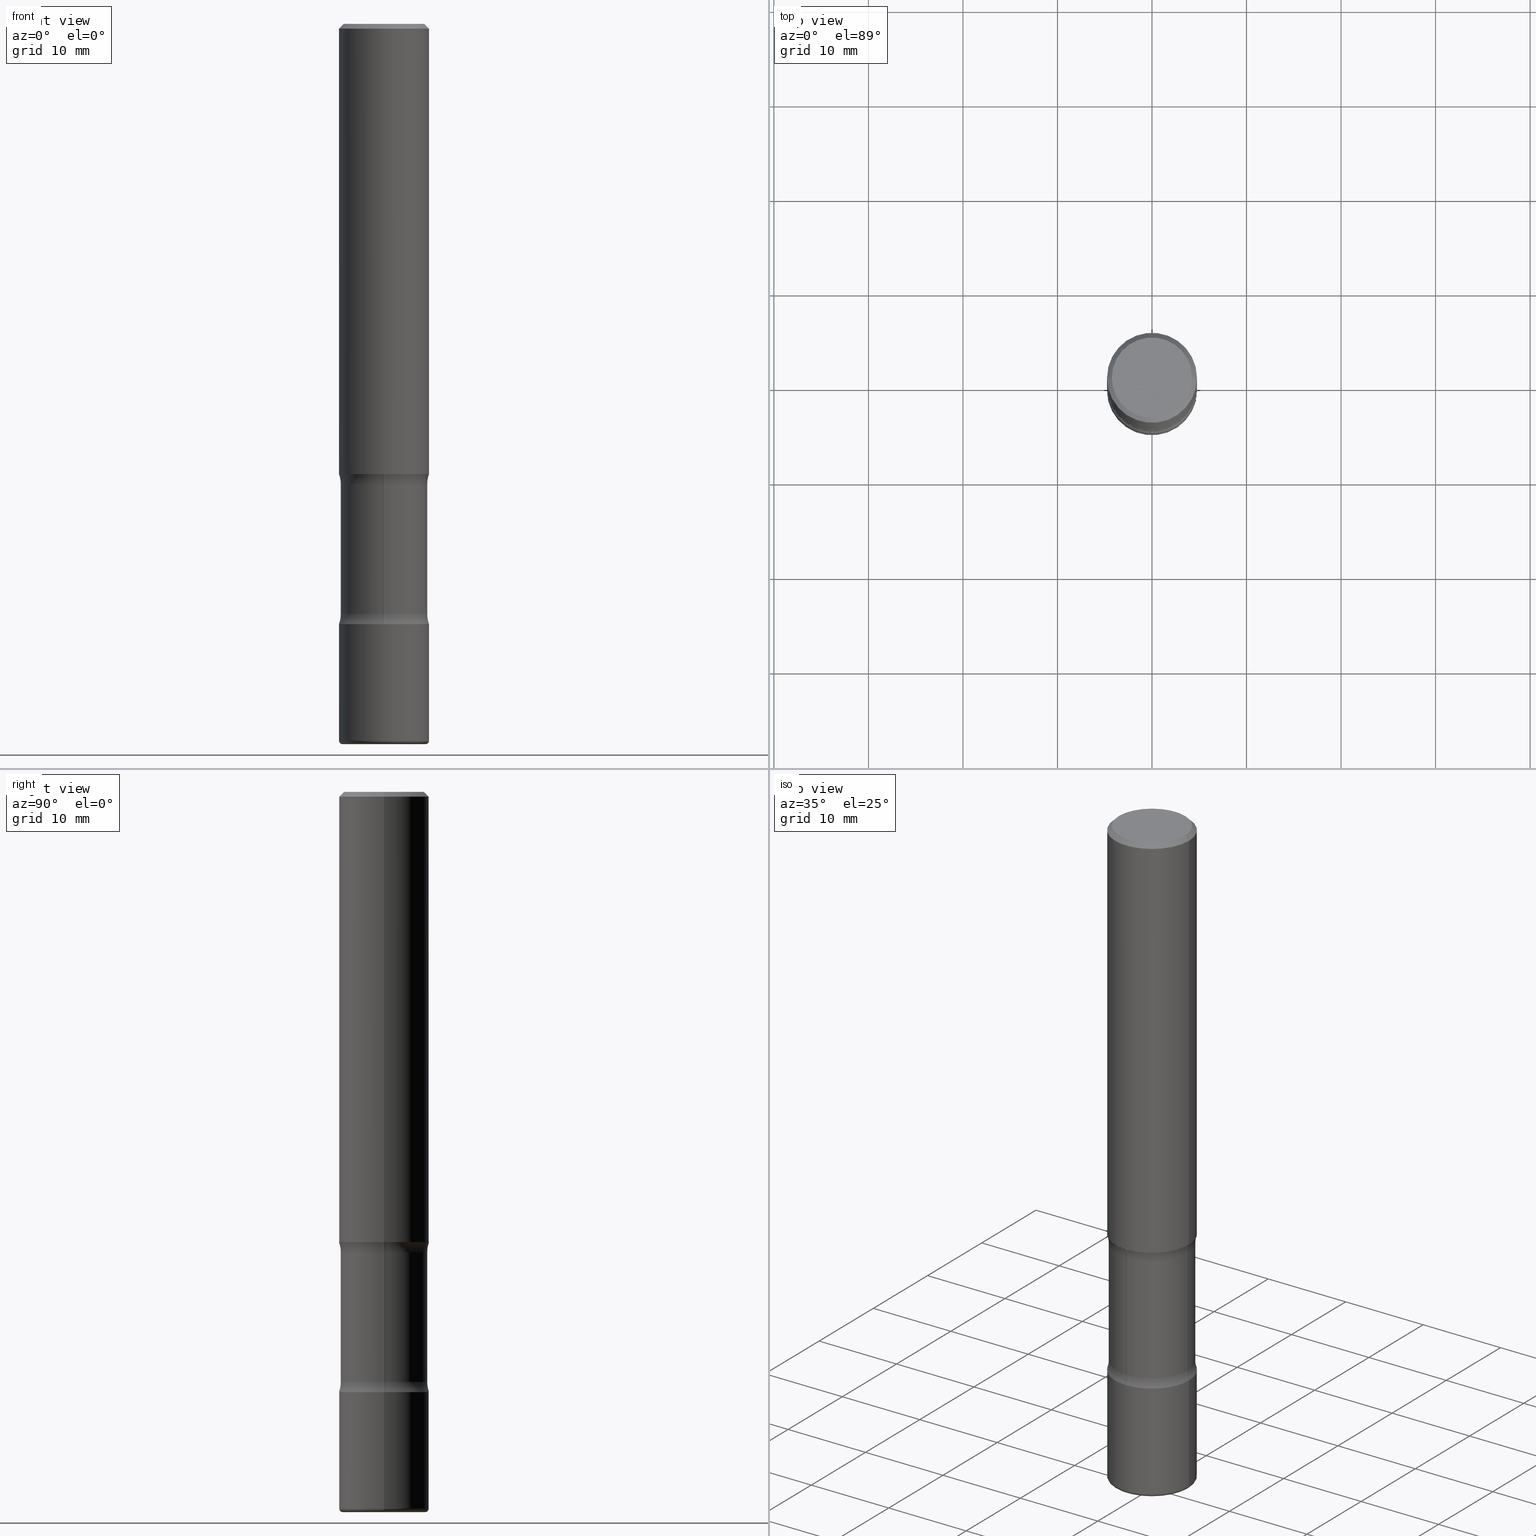
[diagram: canonical four-view strip — front | top / right | iso, engineering-drawing reading convention]
A machine part, canonical four-view strip (front | top / right | iso — engineering-drawing reading convention). The complete STEP part file that produces these views, byte-faithful:
ISO-10303-21;
HEADER;
FILE_DESCRIPTION (( 'STEP AP203' ),
    '1' );
FILE_NAME ('35791.STEP',
    '2023-03-11T07:10:35',
    ( '' ),
    ( '' ),
    'SwSTEP 2.0',
    'SolidWorks 2022',
    '' );
FILE_SCHEMA (( 'CONFIG_CONTROL_DESIGN' ));
ENDSEC;

DATA;
#1 = CYLINDRICAL_SURFACE ( 'NONE', #57, 0.1800000000000000211 ) ;
#2 = AXIS2_PLACEMENT_3D ( 'NONE', #279, #711, #25 ) ;
#3 = ORIENTED_EDGE ( 'NONE', *, *, #94, .T. ) ;
#4 = ADVANCED_FACE ( 'NONE', ( #20 ), #152, .T. ) ;
#5 = DIRECTION ( 'NONE',  ( -1.000000000000000000, 7.105427357601006592E-15, 0.000000000000000000 ) ) ;
#6 = VERTEX_POINT ( 'NONE', #77 ) ;
#7 = DIRECTION ( 'NONE',  ( 1.000000000000000000, -6.982962677686261977E-15, 0.000000000000000000 ) ) ;
#8 = TOROIDAL_SURFACE ( 'NONE', #545, 0.1725000000000000422, 0.01500000000000011394 ) ;
#9 = CARTESIAN_POINT ( 'NONE',  ( 4.636979359799471865E-29, -6.770705658946665508E-15, -1.917646805273080179 ) ) ;
#10 = AXIS2_PLACEMENT_3D ( 'NONE', #354, #736, #227 ) ;
#11 = VERTEX_POINT ( 'NONE', #148 ) ;
#12 = DIRECTION ( 'NONE',  ( -2.445468806185136597E-29, 3.491481338843145583E-15, 1.000000000000000000 ) ) ;
#13 = CARTESIAN_POINT ( 'NONE',  ( 4.641854462123726297E-29, -6.763724234944741292E-15, -1.917646805273080179 ) ) ;
#14 = EDGE_CURVE ( 'NONE', #73, #565, #39, .T. ) ;
#15 = VERTEX_POINT ( 'NONE', #88 ) ;
#16 = UNCERTAINTY_MEASURE_WITH_UNIT (LENGTH_MEASURE( 1.000000000000000082E-05 ), #524, 'distance_accuracy_value', 'NONE');
#17 = DIRECTION ( 'NONE',  ( -1.000000000000000000, 6.982962677686265133E-15, 0.000000000000000000 ) ) ;
#18 = CARTESIAN_POINT ( 'NONE',  ( 0.1874999999999997780, -1.356173001359023691E-15, -0.02000000000000003858 ) ) ;
#19 = CARTESIAN_POINT ( 'NONE',  ( 0.1875000000000000833, -1.173137729851296152E-14, -2.984999999999999876 ) ) ;
#20 = FACE_OUTER_BOUND ( 'NONE', #124, .T. ) ;
#21 = ADVANCED_FACE ( 'NONE', ( #647 ), #308, .F. ) ;
#22 = AXIS2_PLACEMENT_3D ( 'NONE', #771, #460, #710 ) ;
#23 = PRODUCT_RELATED_PRODUCT_CATEGORY ( 'detail', '', ( #224 ) ) ;
#24 = FACE_OUTER_BOUND ( 'NONE', #112, .T. ) ;
#25 = DIRECTION ( 'NONE',  ( 6.982962677686266711E-15, 1.000000000000000000, -2.913971193241879583E-15 ) ) ;
#26 = DATE_AND_TIME ( #341, #583 ) ;
#27 = FACE_OUTER_BOUND ( 'NONE', #542, .T. ) ;
#28 = ORIENTED_EDGE ( 'NONE', *, *, #411, .T. ) ;
#29 = DIRECTION ( 'NONE',  ( -2.445468806185136597E-29, 3.491481338843145583E-15, 1.000000000000000000 ) ) ;
#30 = CARTESIAN_POINT ( 'NONE',  ( 0.1875000000000000555, -1.003800884917403837E-14, -2.499999999999999556 ) ) ;
#31 = APPROVAL_STATUS ( 'not_yet_approved' ) ;
#32 = AXIS2_PLACEMENT_3D ( 'NONE', #325, #123, #759 ) ;
#33 = ORIENTED_EDGE ( 'NONE', *, *, #168, .F. ) ;
#34 = CIRCLE ( 'NONE', #302, 0.1875000000000000278 ) ;
#35 = CARTESIAN_POINT ( 'NONE',  ( 6.113672015462840371E-29, -8.728703347107863365E-15, -2.499999999999999556 ) ) ;
#36 = EDGE_CURVE ( 'NONE', #179, #563, #526, .T. ) ;
#37 = PLANE ( 'NONE',  #803 ) ;
#38 = DIRECTION ( 'NONE',  ( -2.445468806185136597E-29, 3.491481338843145583E-15, 1.000000000000000000 ) ) ;
#39 = CIRCLE ( 'NONE', #604, 0.1800000000000000488 ) ;
#40 = CARTESIAN_POINT ( 'NONE',  ( 0.3049999999999999378, -8.825231651797445339E-15, -1.917646805273080179 ) ) ;
#41 = CARTESIAN_POINT ( 'NONE',  ( 7.336406418555412032E-29, -1.047444401652943951E-14, -3.000000000000000888 ) ) ;
#42 = ORIENTED_EDGE ( 'NONE', *, *, #268, .T. ) ;
#43 = LINE ( 'NONE', #793, #181 ) ;
#44 = DIRECTION ( 'NONE',  ( -1.000000000000000000, 7.105427357601066545E-15, 0.000000000000000000 ) ) ;
#45 = VERTEX_POINT ( 'NONE', #30 ) ;
#46 = AXIS2_PLACEMENT_3D ( 'NONE', #557, #695, #450 ) ;
#47 = CC_DESIGN_DATE_AND_TIME_ASSIGNMENT ( #617, #490, ( #185 ) ) ;
#48 = CIRCLE ( 'NONE', #732, 0.1875000000000000555 ) ;
#49 = LINE ( 'NONE', #162, #436 ) ;
#50 = APPROVAL_DATE_TIME ( #799, #430 ) ;
#51 = ORIENTED_EDGE ( 'NONE', *, *, #605, .T. ) ;
#52 = DIRECTION ( 'NONE',  ( 2.535733759228071603E-29, -3.362216788523591023E-15, -1.000000000000000000 ) ) ;
#53 = ORIENTED_EDGE ( 'NONE', *, *, #168, .T. ) ;
#54 = EDGE_CURVE ( 'NONE', #565, #73, #641, .T. ) ;
#55 = CARTESIAN_POINT ( 'NONE',  ( 0.1800000000000000211, -7.803460792314427030E-15, -1.875000000000000000 ) ) ;
#56 = ORIENTED_EDGE ( 'NONE', *, *, #230, .F. ) ;
#57 = AXIS2_PLACEMENT_3D ( 'NONE', #750, #385, #188 ) ;
#58 = CARTESIAN_POINT ( 'NONE',  ( 2.129803616694357811E-15, 0.3049999999999932765, -1.917646805273081290 ) ) ;
#59 = ORIENTED_EDGE ( 'NONE', *, *, #270, .F. ) ;
#60 = DIRECTION ( 'NONE',  ( 2.445468806185136597E-29, -3.491481338843145583E-15, -1.000000000000000000 ) ) ;
#61 = EDGE_LOOP ( 'NONE', ( #739, #129, #431, #349 ) ) ;
#62 = DIRECTION ( 'NONE',  ( 6.982962677686266711E-15, 1.000000000000000000, -3.362216788523591023E-15 ) ) ;
#63 = VERTEX_POINT ( 'NONE', #215 ) ;
#64 = ADVANCED_FACE ( 'NONE', ( #780 ), #589, .T. ) ;
#65 = CIRCLE ( 'NONE', #580, 0.1874999999999997780 ) ;
#66 = CIRCLE ( 'NONE', #382, 0.1800000000000000488 ) ;
#67 = CARTESIAN_POINT ( 'NONE',  ( 1.256933281983602082E-15, 0.1799999999999896683, -2.994630931690645426 ) ) ;
#68 = EDGE_CURVE ( 'NONE', #15, #352, #709, .T. ) ;
#69 = AXIS2_PLACEMENT_3D ( 'NONE', #105, #419, #796 ) ;
#70 = ORIENTED_EDGE ( 'NONE', *, *, #133, .T. ) ;
#71 = APPLICATION_CONTEXT ( 'configuration controlled 3d designs of mechanical parts and assemblies' ) ;
#72 = DIRECTION ( 'NONE',  ( 2.438088387897960049E-29, -3.491481338843145188E-15, -1.000000000000000000 ) ) ;
#73 = VERTEX_POINT ( 'NONE', #413 ) ;
#74 = DESIGN_CONTEXT ( 'detailed design', #71, 'design' ) ;
#75 = EDGE_CURVE ( 'NONE', #45, #744, #104, .T. ) ;
#76 = FACE_OUTER_BOUND ( 'NONE', #423, .T. ) ;
#77 = CARTESIAN_POINT ( 'NONE',  ( 0.1874999999999997780, -1.356173001359023691E-15, -0.02000000000000003858 ) ) ;
#78 = ORIENTED_EDGE ( 'NONE', *, *, #75, .F. ) ;
#79 = CARTESIAN_POINT ( 'NONE',  ( 6.113672015462840371E-29, -8.728703347107863365E-15, -2.499999999999999556 ) ) ;
#80 = CONICAL_SURFACE ( 'NONE', #236, 0.1874999999999997780, 0.7853981633974487231 ) ;
#81 = CIRCLE ( 'NONE', #479, 0.1875000000000000555 ) ;
#82 = LINE ( 'NONE', #340, #173 ) ;
#83 = AXIS2_PLACEMENT_3D ( 'NONE', #766, #467, #525 ) ;
#84 = CC_DESIGN_SECURITY_CLASSIFICATION ( #384, ( #519 ) ) ;
#85 = ORIENTED_EDGE ( 'NONE', *, *, #510, .F. ) ;
#86 = DIRECTION ( 'NONE',  ( 1.000000000000000000, -6.982962677686267499E-15, 0.000000000000000000 ) ) ;
#87 = FACE_OUTER_BOUND ( 'NONE', #332, .T. ) ;
#88 = CARTESIAN_POINT ( 'NONE',  ( -1.286343374582117400E-15, -0.1875000000000067168, -1.874999999999999556 ) ) ;
#89 = CLOSED_SHELL ( 'NONE', ( #21, #323, #343, #303, #170, #473, #602, #486 ) ) ;
#90 = CARTESIAN_POINT ( 'NONE',  ( 7.367924367309242767E-29, -1.039175976976121566E-14, -2.994630931690644982 ) ) ;
#91 = CARTESIAN_POINT ( 'NONE',  ( 4.689545443575900529E-29, -6.695428035103134465E-15, -1.917646805273080179 ) ) ;
#92 = PRODUCT_DEFINITION_SHAPE ( 'NONE', 'NONE',  #185 ) ;
#93 = PERSON_AND_ORGANIZATION_ROLE ( 'design_owner' ) ;
#94 = EDGE_CURVE ( 'NONE', #176, #375, #211, .T. ) ;
#95 = DIRECTION ( 'NONE',  ( -1.000000000000000000, 6.982962677686265922E-15, -4.876176775795935793E-29 ) ) ;
#96 = DIRECTION ( 'NONE',  ( 1.000000000000000000, -6.982962677686265922E-15, 0.000000000000000000 ) ) ;
#97 = CIRCLE ( 'NONE', #406, 0.1674999999999997047 ) ;
#98 = ORIENTED_EDGE ( 'NONE', *, *, #628, .T. ) ;
#99 = AXIS2_PLACEMENT_3D ( 'NONE', #432, #38, #7 ) ;
#100 = PLANE ( 'NONE',  #356 ) ;
#101 = CARTESIAN_POINT ( 'NONE',  ( -0.3049999999999999378, -4.528272691034830129E-15, -1.917646805273080179 ) ) ;
#102 = COORDINATED_UNIVERSAL_TIME_OFFSET ( 5, 0, .BEHIND. ) ;
#103 = ORIENTED_EDGE ( 'NONE', *, *, #199, .F. ) ;
#104 = CIRCLE ( 'NONE', #629, 0.1875000000000000555 ) ;
#105 = CARTESIAN_POINT ( 'NONE',  ( 4.890937612370282792E-31, -6.982962677686303935E-17, -0.02000000000000003858 ) ) ;
#106 = CARTESIAN_POINT ( 'NONE',  ( -0.1799999999999999933, -5.315355495757832321E-15, -1.917646805273080179 ) ) ;
#107 = ADVANCED_FACE ( 'NONE', ( #274 ), #669, .F. ) ;
#108 = ORIENTED_EDGE ( 'NONE', *, *, #199, .T. ) ;
#109 = CARTESIAN_POINT ( 'NONE',  ( 4.689545443575900529E-29, -6.695428035103134465E-15, -1.917646805273080179 ) ) ;
#110 = DIRECTION ( 'NONE',  ( 6.982962677686266711E-15, 1.000000000000000000, -2.913971193241879583E-15 ) ) ;
#111 = COORDINATED_UNIVERSAL_TIME_OFFSET ( 5, 0, .BEHIND. ) ;
#112 = EDGE_LOOP ( 'NONE', ( #477, #312 ) ) ;
#113 = AXIS2_PLACEMENT_3D ( 'NONE', #178, #801, #787 ) ;
#114 = CIRCLE ( 'NONE', #746, 0.1875000000000000555 ) ;
#115 = DIRECTION ( 'NONE',  ( -2.438088387897960049E-29, 3.491481338843145188E-15, 1.000000000000000000 ) ) ;
#116 = APPROVAL_ROLE ( '' ) ;
#117 = ORIENTED_EDGE ( 'NONE', *, *, #686, .T. ) ;
#118 = APPLICATION_CONTEXT ( 'configuration controlled 3d designs of mechanical parts and assemblies' ) ;
#119 = DIRECTION ( 'NONE',  ( -6.982962677686265133E-15, -1.000000000000000000, 0.000000000000000000 ) ) ;
#120 = EDGE_LOOP ( 'NONE', ( #753, #85 ) ) ;
#121 = DIRECTION ( 'NONE',  ( 6.982962677686265922E-15, 1.000000000000000000, -2.913971193241879977E-15 ) ) ;
#122 = EDGE_CURVE ( 'NONE', #288, #63, #82, .T. ) ;
#123 = DIRECTION ( 'NONE',  ( 2.535733759228071603E-29, -3.362216788523591023E-15, -1.000000000000000000 ) ) ;
#124 = EDGE_LOOP ( 'NONE', ( #645, #184, #342, #444 ) ) ;
#125 = AXIS2_PLACEMENT_3D ( 'NONE', #798, #616, #119 ) ;
#126 = CARTESIAN_POINT ( 'NONE',  ( 4.689545443575900529E-29, -6.695428035103134465E-15, -1.917646805273080179 ) ) ;
#127 = AXIS2_PLACEMENT_3D ( 'NONE', #462, #225, #273 ) ;
#128 = DIRECTION ( 'NONE',  ( -1.000000000000000000, 6.982962677686265133E-15, 0.000000000000000000 ) ) ;
#129 = ORIENTED_EDGE ( 'NONE', *, *, #122, .T. ) ;
#130 = FACE_OUTER_BOUND ( 'NONE', #404, .T. ) ;
#131 = ADVANCED_FACE ( 'NONE', ( #527 ), #80, .T. ) ;
#132 = ORIENTED_EDGE ( 'NONE', *, *, #411, .F. ) ;
#133 = EDGE_CURVE ( 'NONE', #756, #6, #653, .T. ) ;
#134 = DIRECTION ( 'NONE',  ( 2.535733759228071603E-29, -3.362216788523591023E-15, -1.000000000000000000 ) ) ;
#135 = CARTESIAN_POINT ( 'NONE',  ( 4.641854462123726297E-29, -6.763724234944741292E-15, -1.917646805273080179 ) ) ;
#136 = ORIENTED_EDGE ( 'NONE', *, *, #219, .F. ) ;
#137 = CIRCLE ( 'NONE', #180, 0.1875000000000000833 ) ;
#138 = AXIS2_PLACEMENT_3D ( 'NONE', #721, #576, #591 ) ;
#139 = CARTESIAN_POINT ( 'NONE',  ( 1.256933281983588474E-15, 0.1799999999999915001, -2.457353194726920265 ) ) ;
#140 =( GEOMETRIC_REPRESENTATION_CONTEXT ( 3 ) GLOBAL_UNCERTAINTY_ASSIGNED_CONTEXT ( ( #16 ) ) GLOBAL_UNIT_ASSIGNED_CONTEXT ( ( #524, #518, #719 ) ) REPRESENTATION_CONTEXT ( 'NONE', 'WORKASPACE' ) );
#141 = ORIENTED_EDGE ( 'NONE', *, *, #494, .T. ) ;
#142 = CARTESIAN_POINT ( 'NONE',  ( 6.005531071608665946E-29, -8.585315542441815254E-15, -2.457353194726919376 ) ) ;
#143 = MANIFOLD_SOLID_BREP ( 'Body-Move/Copy2[3]', #588 ) ;
#144 = DIRECTION ( 'NONE',  ( 1.000000000000000000, -6.982962677686269077E-15, 0.000000000000000000 ) ) ;
#145 = APPROVAL_ROLE ( '' ) ;
#146 = MANIFOLD_SOLID_BREP ( 'Body-Move/Copy2[4]', #321 ) ;
#147 = DIRECTION ( 'NONE',  ( -2.445468806185136597E-29, 3.491481338843145583E-15, 1.000000000000000000 ) ) ;
#148 = CARTESIAN_POINT ( 'NONE',  ( -1.286343374582101031E-15, -0.1875000000000087985, -2.499999999999999112 ) ) ;
#149 = FACE_OUTER_BOUND ( 'NONE', #377, .T. ) ;
#150 = EDGE_CURVE ( 'NONE', #73, #179, #220, .T. ) ;
#151 = AXIS2_PLACEMENT_3D ( 'NONE', #564, #389, #5 ) ;
#152 = CYLINDRICAL_SURFACE ( 'NONE', #538, 0.1874999999999999167 ) ;
#153 = AXIS2_PLACEMENT_3D ( 'NONE', #126, #12, #200 ) ;
#154 = MANIFOLD_SOLID_BREP ( 'Body-Move/Copy2[2]', #575 ) ;
#155 = ORIENTED_EDGE ( 'NONE', *, *, #54, .T. ) ;
#156 = MANIFOLD_SOLID_BREP ( 'Body-Move/Copy2[1]', #89 ) ;
#157 = DIRECTION ( 'NONE',  ( 2.445468806185136597E-29, -3.491481338843145583E-15, -1.000000000000000000 ) ) ;
#158 = DIRECTION ( 'NONE',  ( 2.445468806185136597E-29, -3.491481338843145583E-15, -1.000000000000000000 ) ) ;
#159 = FACE_OUTER_BOUND ( 'NONE', #694, .T. ) ;
#160 = CARTESIAN_POINT ( 'NONE',  ( 6.009380583484072082E-29, -8.579802822335625240E-15, -2.457353194726919376 ) ) ;
#161 = EDGE_LOOP ( 'NONE', ( #496, #296 ) ) ;
#162 = CARTESIAN_POINT ( 'NONE',  ( -0.1874999999999999167, 1.332267629550187257E-15, -9.223003294227943787E-30 ) ) ;
#163 = DIRECTION ( 'NONE',  ( 6.860497997771529985E-15, 1.000000000000000000, 0.000000000000000000 ) ) ;
#164 = PERSON_AND_ORGANIZATION ( #381, #625 ) ;
#165 = AXIS2_PLACEMENT_3D ( 'NONE', #688, #60, #128 ) ;
#166 = ORIENTED_EDGE ( 'NONE', *, *, #290, .T. ) ;
#167 = AXIS2_PLACEMENT_3D ( 'NONE', #703, #724, #582 ) ;
#168 = EDGE_CURVE ( 'NONE', #6, #472, #65, .T. ) ;
#169 = LINE ( 'NONE', #488, #571 ) ;
#170 = ADVANCED_FACE ( 'NONE', ( #367 ), #8, .T. ) ;
#171 = DIRECTION ( 'NONE',  ( -2.445468806185136597E-29, 3.491481338843145583E-15, 1.000000000000000000 ) ) ;
#172 = VERTEX_POINT ( 'NONE', #794 ) ;
#173 = VECTOR ( 'NONE', #585, 39.37007874015748143 ) ;
#174 = FACE_OUTER_BOUND ( 'NONE', #324, .T. ) ;
#175 = PERSON_AND_ORGANIZATION ( #381, #625 ) ;
#176 = VERTEX_POINT ( 'NONE', #298 ) ;
#177 = DIRECTION ( 'NONE',  ( -0.9993908270190957621, 6.856857904024561992E-15, -0.03489949670249974795 ) ) ;
#178 = CARTESIAN_POINT ( 'NONE',  ( 4.585254011597131119E-29, -6.546527510330898707E-15, -1.875000000000000000 ) ) ;
#179 = VERTEX_POINT ( 'NONE', #106 ) ;
#180 = AXIS2_PLACEMENT_3D ( 'NONE', #537, #421, #110 ) ;
#181 = VECTOR ( 'NONE', #177, 39.37007874015748143 ) ;
#182 = AXIS2_PLACEMENT_3D ( 'NONE', #233, #551, #95 ) ;
#183 = DIRECTION ( 'NONE',  ( 1.000000000000000000, -6.982962677686267499E-15, 4.883557194083113462E-29 ) ) ;
#184 = ORIENTED_EDGE ( 'NONE', *, *, #510, .T. ) ;
#185 = PRODUCT_DEFINITION ( 'UNKNOWN', '', #519, #74 ) ;
#186 = DIRECTION ( 'NONE',  ( 2.535733759228071603E-29, -3.362216788523591023E-15, -1.000000000000000000 ) ) ;
#187 = AXIS2_PLACEMENT_3D ( 'NONE', #91, #461, #144 ) ;
#188 = DIRECTION ( 'NONE',  ( 1.000000000000000000, -6.982962677686267499E-15, 0.000000000000000000 ) ) ;
#189 = ORIENTED_EDGE ( 'NONE', *, *, #440, .T. ) ;
#190 = LINE ( 'NONE', #67, #595 ) ;
#191 = EDGE_LOOP ( 'NONE', ( #249, #504, #469, #674 ) ) ;
#192 = AXIS2_PLACEMENT_3D ( 'NONE', #101, #608, #599 ) ;
#193 = AXIS2_PLACEMENT_3D ( 'NONE', #142, #528, #456 ) ;
#194 = CARTESIAN_POINT ( 'NONE',  ( 0.000000000000000000, 0.000000000000000000, 0.000000000000000000 ) ) ;
#195 = EDGE_CURVE ( 'NONE', #314, #482, #530, .T. ) ;
#196 = EDGE_LOOP ( 'NONE', ( #246, #70, #53, #256 ) ) ;
#197 = CARTESIAN_POINT ( 'NONE',  ( -2.092451889320256668E-15, -0.3050000000000085976, -2.457353194726918488 ) ) ;
#198 = EDGE_LOOP ( 'NONE', ( #508, #768, #624, #659 ) ) ;
#199 = EDGE_CURVE ( 'NONE', #795, #789, #717, .T. ) ;
#200 = DIRECTION ( 'NONE',  ( 1.000000000000000000, -6.982962677686266711E-15, 4.883557194083112340E-29 ) ) ;
#201 = CARTESIAN_POINT ( 'NONE',  ( 1.309305502066220959E-15, 0.1874999999999935052, -1.875000000000000666 ) ) ;
#202 = ORIENTED_EDGE ( 'NONE', *, *, #68, .T. ) ;
#203 = EDGE_CURVE ( 'NONE', #666, #179, #687, .T. ) ;
#204 = CONICAL_SURFACE ( 'NONE', #165, 0.1874999999999997780, 0.7853981633974487231 ) ;
#205 = AXIS2_PLACEMENT_3D ( 'NONE', #775, #652, #206 ) ;
#206 = DIRECTION ( 'NONE',  ( 1.000000000000000000, -6.982962677686215435E-15, 0.000000000000000000 ) ) ;
#207 = CC_DESIGN_APPROVAL ( #430, ( #384 ) ) ;
#208 = DIRECTION ( 'NONE',  ( -2.445468806185136877E-29, 3.491481338843145188E-15, 1.000000000000000000 ) ) ;
#209 = EDGE_CURVE ( 'NONE', #574, #789, #731, .T. ) ;
#210 = CARTESIAN_POINT ( 'NONE',  ( 1.026633993897607079E-29, -1.601363133021255424E-14, -2.499999999999999556 ) ) ;
#211 = LINE ( 'NONE', #357, #212 ) ;
#212 = VECTOR ( 'NONE', #579, 39.37007874015748143 ) ;
#213 = ORIENTED_EDGE ( 'NONE', *, *, #219, .T. ) ;
#214 = DIRECTION ( 'NONE',  ( -1.000000000000000000, 6.982962677686265922E-15, -4.876176775795935793E-29 ) ) ;
#215 = CARTESIAN_POINT ( 'NONE',  ( -1.260616507090458719E-15, -0.1800000000000086253, -2.457353194726918932 ) ) ;
#216 = CARTESIAN_POINT ( 'NONE',  ( 4.585254011597131119E-29, -6.546527510330898707E-15, -1.875000000000000000 ) ) ;
#217 = CARTESIAN_POINT ( 'NONE',  ( 0.1800000000000000488, -9.836736104319153563E-15, -2.457353194726919376 ) ) ;
#218 = TOROIDAL_SURFACE ( 'NONE', #46, 0.1725000000000000422, 0.01500000000000011394 ) ;
#219 = EDGE_CURVE ( 'NONE', #563, #179, #778, .T. ) ;
#220 = LINE ( 'NONE', #764, #745 ) ;
#221 = AXIS2_PLACEMENT_3D ( 'NONE', #216, #405, #86 ) ;
#222 = LOCAL_TIME ( 2, 10, 35.00000000000000000, #102 ) ;
#223 = ORIENTED_EDGE ( 'NONE', *, *, #195, .T. ) ;
#224 = PRODUCT ( '35791', '35791', '', ( #593 ) ) ;
#225 = DIRECTION ( 'NONE',  ( -2.535733759228071042E-29, 3.362216788523591023E-15, 1.000000000000000000 ) ) ;
#226 = ORIENTED_EDGE ( 'NONE', *, *, #484, .T. ) ;
#227 = DIRECTION ( 'NONE',  ( 1.000000000000000000, -6.982962677686265922E-15, 4.876176775795935793E-29 ) ) ;
#228 = CARTESIAN_POINT ( 'NONE',  ( 4.689545443575900529E-29, -6.695428035103134465E-15, -1.917646805273080179 ) ) ;
#229 = PERSON_AND_ORGANIZATION_ROLE ( 'creator' ) ;
#230 = EDGE_CURVE ( 'NONE', #758, #756, #369, .T. ) ;
#231 = ORIENTED_EDGE ( 'NONE', *, *, #568, .F. ) ;
#232 = CC_DESIGN_PERSON_AND_ORGANIZATION_ASSIGNMENT ( #788, #299, ( #519 ) ) ;
#233 = CARTESIAN_POINT ( 'NONE',  ( 1.169646248512447623E-15, 0.1674999999999997047, -5.826888680111756689E-16 ) ) ;
#234 = ADVANCED_FACE ( 'NONE', ( #428 ), #741, .T. ) ;
#235 = FACE_OUTER_BOUND ( 'NONE', #282, .T. ) ;
#236 = AXIS2_PLACEMENT_3D ( 'NONE', #656, #715, #409 ) ;
#237 = ORIENTED_EDGE ( 'NONE', *, *, #209, .F. ) ;
#238 = AXIS2_PLACEMENT_3D ( 'NONE', #412, #533, #512 ) ;
#239 = LOCAL_TIME ( 2, 10, 35.00000000000000000, #748 ) ;
#240 = DIRECTION ( 'NONE',  ( -6.982962677686266711E-15, -1.000000000000000000, 3.491481338843145583E-15 ) ) ;
#241 = CARTESIAN_POINT ( 'NONE',  ( -1.043851414335219820E-46, 1.490343170380447200E-32, 4.268512490100411279E-18 ) ) ;
#242 = EDGE_CURVE ( 'NONE', #11, #314, #337, .T. ) ;
#243 = ORIENTED_EDGE ( 'NONE', *, *, #320, .T. ) ;
#244 = FACE_OUTER_BOUND ( 'NONE', #120, .T. ) ;
#245 = CARTESIAN_POINT ( 'NONE',  ( 7.299724386462632472E-29, -1.042207179644678967E-14, -2.984999999999999876 ) ) ;
#246 = ORIENTED_EDGE ( 'NONE', *, *, #458, .F. ) ;
#247 = CARTESIAN_POINT ( 'NONE',  ( 6.838086267733839931E-28, 7.694469178072711128E-14, -3.000000000000000888 ) ) ;
#248 = CC_DESIGN_DATE_AND_TIME_ASSIGNMENT ( #306, #673, ( #384 ) ) ;
#249 = ORIENTED_EDGE ( 'NONE', *, *, #290, .F. ) ;
#250 = AXIS2_PLACEMENT_3D ( 'NONE', #197, #443, #255 ) ;
#251 = TOROIDAL_SURFACE ( 'NONE', #338, 0.3049999999999999378, 0.1249999999999999584 ) ;
#252 = FACE_OUTER_BOUND ( 'NONE', #487, .T. ) ;
#253 = ORIENTED_EDGE ( 'NONE', *, *, #640, .T. ) ;
#254 = AXIS2_PLACEMENT_3D ( 'NONE', #463, #346, #529 ) ;
#255 = DIRECTION ( 'NONE',  ( 6.860497997771529985E-15, 1.000000000000000000, 0.000000000000000000 ) ) ;
#256 = ORIENTED_EDGE ( 'NONE', *, *, #541, .F. ) ;
#257 = DIRECTION ( 'NONE',  ( 1.000000000000000000, -6.982962677686266711E-15, 4.875936752492901611E-29 ) ) ;
#258 = ORIENTED_EDGE ( 'NONE', *, *, #408, .F. ) ;
#259 = CIRCLE ( 'NONE', #446, 0.1249999999999999584 ) ;
#260 = AXIS2_PLACEMENT_3D ( 'NONE', #403, #464, #347 ) ;
#261 = FACE_OUTER_BOUND ( 'NONE', #365, .T. ) ;
#262 = ORIENTED_EDGE ( 'NONE', *, *, #268, .F. ) ;
#263 = ADVANCED_FACE ( 'NONE', ( #174 ), #37, .F. ) ;
#264 = CARTESIAN_POINT ( 'NONE',  ( 1.309305502066236342E-15, 0.1874999999999913403, -2.500000000000000000 ) ) ;
#265 = ORIENTED_EDGE ( 'NONE', *, *, #605, .F. ) ;
#266 = FACE_OUTER_BOUND ( 'NONE', #198, .T. ) ;
#267 = DIRECTION ( 'NONE',  ( 1.000000000000000000, -6.982962677686265922E-15, 0.000000000000000000 ) ) ;
#268 = EDGE_CURVE ( 'NONE', #288, #15, #634, .T. ) ;
#269 = DIRECTION ( 'NONE',  ( -2.445468806185136597E-29, 3.491481338843145583E-15, 1.000000000000000000 ) ) ;
#270 = EDGE_CURVE ( 'NONE', #352, #15, #137, .T. ) ;
#271 = AXIS2_PLACEMENT_3D ( 'NONE', #241, #552, #425 ) ;
#272 = VECTOR ( 'NONE', #762, 39.37007874015748143 ) ;
#273 = DIRECTION ( 'NONE',  ( -6.982962677686265922E-15, -1.000000000000000000, 3.362216788523591023E-15 ) ) ;
#274 = FACE_OUTER_BOUND ( 'NONE', #635, .T. ) ;
#275 = EDGE_CURVE ( 'NONE', #789, #390, #310, .T. ) ;
#276 = ORIENTED_EDGE ( 'NONE', *, *, #543, .F. ) ;
#277 = DIRECTION ( 'NONE',  ( 2.535733759228071603E-29, -3.362216788523591023E-15, -1.000000000000000000 ) ) ;
#278 = CARTESIAN_POINT ( 'NONE',  ( 1.036015759855943540E-27, -1.479155932447654588E-13, -42.36470967184812508 ) ) ;
#279 = CARTESIAN_POINT ( 'NONE',  ( 4.528838415945296880E-29, -6.627317854280619764E-15, -1.875000000000000000 ) ) ;
#280 = EDGE_CURVE ( 'NONE', #606, #375, #791, .T. ) ;
#281 = DIRECTION ( 'NONE',  ( 1.000000000000000000, -6.982962677686265133E-15, 0.000000000000000000 ) ) ;
#282 = EDGE_LOOP ( 'NONE', ( #439, #231 ) ) ;
#283 = ORIENTED_EDGE ( 'NONE', *, *, #275, .T. ) ;
#284 = DIRECTION ( 'NONE',  ( 6.982962677686266711E-15, 1.000000000000000000, -3.035386659626958343E-15 ) ) ;
#285 = AXIS2_PLACEMENT_3D ( 'NONE', #305, #171, #603 ) ;
#286 = AXIS2_PLACEMENT_3D ( 'NONE', #339, #584, #544 ) ;
#287 = ORIENTED_EDGE ( 'NONE', *, *, #122, .F. ) ;
#288 = VERTEX_POINT ( 'NONE', #540 ) ;
#289 = CARTESIAN_POINT ( 'NONE',  ( 0.1875000000000000555, -7.855833012397073715E-15, -1.875000000000000000 ) ) ;
#290 = EDGE_CURVE ( 'NONE', #666, #631, #763, .T. ) ;
#291 = DIRECTION ( 'NONE',  ( 2.535733759228071042E-29, -3.362216788523591023E-15, -1.000000000000000000 ) ) ;
#292 = CC_DESIGN_PERSON_AND_ORGANIZATION_ASSIGNMENT ( #164, #422, ( #384 ) ) ;
#293 = AXIS2_PLACEMENT_3D ( 'NONE', #398, #722, #334 ) ;
#294 = CARTESIAN_POINT ( 'NONE',  ( -0.1875000000000000555, -7.396435717557673939E-15, -2.499999999999999556 ) ) ;
#295 = DIRECTION ( 'NONE',  ( -2.445468806185136597E-29, 3.491481338843145583E-15, 1.000000000000000000 ) ) ;
#296 = ORIENTED_EDGE ( 'NONE', *, *, #242, .T. ) ;
#297 = DIRECTION ( 'NONE',  ( 1.000000000000000000, -6.982962677686265133E-15, 0.000000000000000000 ) ) ;
#298 = CARTESIAN_POINT ( 'NONE',  ( 7.593586749916580843E-29, -1.006859839396232827E-14, -2.994630931690644982 ) ) ;
#299 = PERSON_AND_ORGANIZATION_ROLE ( 'creator' ) ;
#300 = CIRCLE ( 'NONE', #556, 0.1249999999999999584 ) ;
#301 = EDGE_LOOP ( 'NONE', ( #442, #330, #223, #141 ) ) ;
#302 = AXIS2_PLACEMENT_3D ( 'NONE', #781, #483, #536 ) ;
#303 = ADVANCED_FACE ( 'NONE', ( #235, #676 ), #433, .F. ) ;
#304 = DIRECTION ( 'NONE',  ( -2.445468806185136877E-29, 3.491481338843145188E-15, 1.000000000000000000 ) ) ;
#305 = CARTESIAN_POINT ( 'NONE',  ( 7.299724386462632472E-29, -1.042207179644678967E-14, -2.984999999999999876 ) ) ;
#306 = DATE_AND_TIME ( #600, #561 ) ;
#307 = ORIENTED_EDGE ( 'NONE', *, *, #541, .T. ) ;
#308 = CONICAL_SURFACE ( 'NONE', #681, 1127.411546571520148, 1.535889741755011251 ) ;
#309 = EDGE_CURVE ( 'NONE', #565, #563, #805, .T. ) ;
#310 = LINE ( 'NONE', #782, #391 ) ;
#311 = APPROVAL_DATE_TIME ( #26, #559 ) ;
#312 = ORIENTED_EDGE ( 'NONE', *, *, #499, .T. ) ;
#313 = DIRECTION ( 'NONE',  ( -2.445468806185136877E-29, 3.491481338843145188E-15, 1.000000000000000000 ) ) ;
#314 = VERTEX_POINT ( 'NONE', #264 ) ;
#315 = AXIS2_PLACEMENT_3D ( 'NONE', #247, #115, #493 ) ;
#316 = CIRCLE ( 'NONE', #167, 0.1875000000000000278 ) ;
#317 = CARTESIAN_POINT ( 'NONE',  ( -0.1674999999999997047, 1.204561061900878878E-15, 4.268512490092109750E-18 ) ) ;
#318 = DIRECTION ( 'NONE',  ( -1.000000000000000000, 6.982962677686265922E-15, -4.883557194083112901E-29 ) ) ;
#319 = ORIENTED_EDGE ( 'NONE', *, *, #242, .F. ) ;
#320 = EDGE_CURVE ( 'NONE', #288, #784, #66, .T. ) ;
#321 = CLOSED_SHELL ( 'NONE', ( #64, #661, #372, #401, #263, #590, #773, #534 ) ) ;
#322 = CARTESIAN_POINT ( 'NONE',  ( -1.043851414335219820E-46, 1.490343170380447200E-32, 4.268512490100411279E-18 ) ) ;
#323 = ADVANCED_FACE ( 'NONE', ( #252 ), #626, .T. ) ;
#324 = EDGE_LOOP ( 'NONE', ( #59, #806 ) ) ;
#325 = CARTESIAN_POINT ( 'NONE',  ( 6.005531071608665946E-29, -8.585315542441815254E-15, -2.457353194726919376 ) ) ;
#326 = ORIENTED_EDGE ( 'NONE', *, *, #632, .F. ) ;
#327 = TOROIDAL_SURFACE ( 'NONE', #621, 0.3050000000000000488, 0.1249999999999999584 ) ;
#328 = AXIS2_PLACEMENT_3D ( 'NONE', #90, #345, #284 ) ;
#329 = DIRECTION ( 'NONE',  ( 2.535733759228071603E-29, -3.362216788523591023E-15, -1.000000000000000000 ) ) ;
#330 = ORIENTED_EDGE ( 'NONE', *, *, #760, .F. ) ;
#331 = DIRECTION ( 'NONE',  ( -1.000000000000000000, 6.982962677686265922E-15, -4.876176775795935793E-29 ) ) ;
#332 = EDGE_LOOP ( 'NONE', ( #700, #253, #387 ) ) ;
#333 = CARTESIAN_POINT ( 'NONE',  ( 0.1799999999999999933, -7.952361317086663578E-15, -1.917646805273080179 ) ) ;
#334 = DIRECTION ( 'NONE',  ( 1.000000000000000000, -6.982962677686266711E-15, 0.000000000000000000 ) ) ;
#335 = PERSON_AND_ORGANIZATION ( #381, #625 ) ;
#336 = CARTESIAN_POINT ( 'NONE',  ( -0.1875000000000000833, -9.089804166896600242E-15, -2.984999999999999876 ) ) ;
#337 = CIRCLE ( 'NONE', #434, 0.1875000000000000555 ) ;
#338 = AXIS2_PLACEMENT_3D ( 'NONE', #109, #725, #657 ) ;
#339 = CARTESIAN_POINT ( 'NONE',  ( 7.336406418555409790E-29, -1.047444401652943635E-14, -3.000000000000000444 ) ) ;
#340 = CARTESIAN_POINT ( 'NONE',  ( -1.234889639598802207E-15, -0.1800000000000104294, -2.994630931690644093 ) ) ;
#341 = CALENDAR_DATE ( 2023, 11, 3 ) ;
#342 = ORIENTED_EDGE ( 'NONE', *, *, #664, .T. ) ;
#343 = ADVANCED_FACE ( 'NONE', ( #630 ), #218, .T. ) ;
#344 = CARTESIAN_POINT ( 'NONE',  ( 4.636979359799471865E-29, -6.770705658946665508E-15, -1.917646805273080179 ) ) ;
#345 = DIRECTION ( 'NONE',  ( 2.535733759228071603E-29, -3.362216788523591023E-15, -1.000000000000000000 ) ) ;
#346 = DIRECTION ( 'NONE',  ( 2.535733759228071603E-29, -3.362216788523591023E-15, -1.000000000000000000 ) ) ;
#347 = DIRECTION ( 'NONE',  ( 1.000000000000000000, 0.000000000000000000, 0.000000000000000000 ) ) ;
#348 = EDGE_CURVE ( 'NONE', #784, #482, #190, .T. ) ;
#349 = ORIENTED_EDGE ( 'NONE', *, *, #348, .F. ) ;
#350 = PLANE ( 'NONE',  #127 ) ;
#351 = DIRECTION ( 'NONE',  ( 1.000000000000000000, -6.982962677686266711E-15, 0.000000000000000000 ) ) ;
#352 = VERTEX_POINT ( 'NONE', #201 ) ;
#353 = ADVANCED_FACE ( 'NONE', ( #562 ), #1, .T. ) ;
#354 = CARTESIAN_POINT ( 'NONE',  ( 0.000000000000000000, 0.000000000000000000, 0.000000000000000000 ) ) ;
#355 = AXIS2_PLACEMENT_3D ( 'NONE', #13, #441, #62 ) ;
#356 = AXIS2_PLACEMENT_3D ( 'NONE', #733, #359, #601 ) ;
#357 = CARTESIAN_POINT ( 'NONE',  ( 3.870996207580932970E-16, -1.045569801472035141E-14, -2.994630931690644982 ) ) ;
#358 = SECURITY_CLASSIFICATION_LEVEL ( 'unclassified' ) ;
#359 = DIRECTION ( 'NONE',  ( -2.438088387897960049E-29, 3.491481338843145188E-15, 1.000000000000000000 ) ) ;
#360 = EDGE_CURVE ( 'NONE', #744, #45, #81, .T. ) ;
#361 = CARTESIAN_POINT ( 'NONE',  ( -0.1725000000000000422, -9.196385577260614576E-15, -2.984999999999999876 ) ) ;
#362 = ORIENTED_EDGE ( 'NONE', *, *, #484, .F. ) ;
#363 = DIRECTION ( 'NONE',  ( 1.000000000000000000, -6.982962677686261977E-15, 0.000000000000000000 ) ) ;
#364 = APPROVAL_STATUS ( 'not_yet_approved' ) ;
#365 = EDGE_LOOP ( 'NONE', ( #523, #42, #202, #132 ) ) ;
#366 = DIRECTION ( 'NONE',  ( -2.445468806185136877E-29, 3.491481338843145188E-15, 1.000000000000000000 ) ) ;
#367 = FACE_OUTER_BOUND ( 'NONE', #777, .T. ) ;
#368 = APPROVAL_ROLE ( '' ) ;
#369 = CIRCLE ( 'NONE', #271, 0.1674999999999997047 ) ;
#370 = ORIENTED_EDGE ( 'NONE', *, *, #543, .T. ) ;
#371 = CONICAL_SURFACE ( 'NONE', #637, 1127.411546571520148, 1.535889741755011251 ) ;
#372 = ADVANCED_FACE ( 'NONE', ( #261 ), #699, .F. ) ;
#373 = DIRECTION ( 'NONE',  ( 1.000000000000000000, -6.860497997771530774E-15, 4.842381913802063616E-29 ) ) ;
#374 = APPROVAL_STATUS ( 'not_yet_approved' ) ;
#375 = VERTEX_POINT ( 'NONE', #507 ) ;
#376 = CYLINDRICAL_SURFACE ( 'NONE', #138, 0.1875000000000000555 ) ;
#377 = EDGE_LOOP ( 'NONE', ( #418, #560, #226, #735 ) ) ;
#378 = DIRECTION ( 'NONE',  ( 2.535733759228071603E-29, -3.362216788523591023E-15, -1.000000000000000000 ) ) ;
#379 = CC_DESIGN_PERSON_AND_ORGANIZATION_ASSIGNMENT ( #742, #229, ( #185 ) ) ;
#380 = ORIENTED_EDGE ( 'NONE', *, *, #459, .T. ) ;
#381 = PERSON ( 'UNSPECIFIED', 'UNSPECIFIED', 'UNSPECIFIED', ('UNSPECIFIED'), ('UNSPECIFIED'), ('UNSPECIFIED') ) ;
#382 = AXIS2_PLACEMENT_3D ( 'NONE', #9, #329, #567 ) ;
#383 = AXIS2_PLACEMENT_3D ( 'NONE', #667, #427, #478 ) ;
#384 = SECURITY_CLASSIFICATION ( '', '', #358 ) ;
#385 = DIRECTION ( 'NONE',  ( -2.445468806185136597E-29, 3.491481338843145583E-15, 1.000000000000000000 ) ) ;
#386 = ORIENTED_EDGE ( 'NONE', *, *, #743, .T. ) ;
#387 = ORIENTED_EDGE ( 'NONE', *, *, #752, .F. ) ;
#388 = FACE_OUTER_BOUND ( 'NONE', #301, .T. ) ;
#389 = DIRECTION ( 'NONE',  ( 7.105427357601001859E-15, 1.000000000000000000, -3.491481338843145583E-15 ) ) ;
#390 = VERTEX_POINT ( 'NONE', #693 ) ;
#391 = VECTOR ( 'NONE', #554, 39.37007874015748143 ) ;
#392 = CIRCLE ( 'NONE', #193, 0.1800000000000000488 ) ;
#393 = CC_DESIGN_PERSON_AND_ORGANIZATION_ASSIGNMENT ( #335, #93, ( #224 ) ) ;
#394 = PLANE ( 'NONE',  #701 ) ;
#395 = ORIENTED_EDGE ( 'NONE', *, *, #408, .T. ) ;
#396 = LENGTH_MEASURE_WITH_UNIT ( LENGTH_MEASURE( 0.02539999999999999897 ), #765 );
#397 = CARTESIAN_POINT ( 'NONE',  ( 6.009380583484072082E-29, -8.579802822335625240E-15, -2.457353194726919376 ) ) ;
#398 = CARTESIAN_POINT ( 'NONE',  ( 6.009380583484072082E-29, -8.579802822335625240E-15, -2.457353194726919376 ) ) ;
#399 = CYLINDRICAL_SURFACE ( 'NONE', #221, 0.1800000000000000211 ) ;
#400 = CARTESIAN_POINT ( 'NONE',  ( -0.1537500000000003031, -9.400813504835176160E-15, -3.000000000000000888 ) ) ;
#401 = ADVANCED_FACE ( 'NONE', ( #130 ), #327, .F. ) ;
#402 = DIRECTION ( 'NONE',  ( -2.445468806185136597E-29, 3.491481338843145583E-15, 1.000000000000000000 ) ) ;
#403 = CARTESIAN_POINT ( 'NONE',  ( 0.000000000000000000, 0.000000000000000000, 0.000000000000000000 ) ) ;
#404 = EDGE_LOOP ( 'NONE', ( #262, #491, #28, #610 ) ) ;
#405 = DIRECTION ( 'NONE',  ( -2.445468806185136597E-29, 3.491481338843145583E-15, 1.000000000000000000 ) ) ;
#406 = AXIS2_PLACEMENT_3D ( 'NONE', #322, #698, #257 ) ;
#407 = PLANE ( 'NONE',  #804 ) ;
#408 = EDGE_CURVE ( 'NONE', #63, #482, #649, .T. ) ;
#409 = DIRECTION ( 'NONE',  ( -1.000000000000000000, 6.982962677686265133E-15, 0.000000000000000000 ) ) ;
#410 = APPLICATION_PROTOCOL_DEFINITION ( 'international standard', 'config_control_design', 1994, #118 ) ;
#411 = EDGE_CURVE ( 'NONE', #784, #352, #300, .T. ) ;
#412 = CARTESIAN_POINT ( 'NONE',  ( 4.585254011597131119E-29, -6.546527510330898707E-15, -1.875000000000000000 ) ) ;
#413 = CARTESIAN_POINT ( 'NONE',  ( -0.1800000000000000488, -7.348630807762558854E-15, -2.457353194726919376 ) ) ;
#414 = EDGE_LOOP ( 'NONE', ( #706, #117, #33, #500 ) ) ;
#415 = CARTESIAN_POINT ( 'NONE',  ( -0.1725000000000000422, -9.169280982119931541E-15, -3.000000000000000444 ) ) ;
#416 = FACE_OUTER_BOUND ( 'NONE', #191, .T. ) ;
#417 = CARTESIAN_POINT ( 'NONE',  ( 6.113672015462840371E-29, -8.728703347107863365E-15, -2.499999999999999556 ) ) ;
#418 = ORIENTED_EDGE ( 'NONE', *, *, #459, .F. ) ;
#419 = DIRECTION ( 'NONE',  ( -2.445468806185136597E-29, 3.491481338843145583E-15, 1.000000000000000000 ) ) ;
#420 = VECTOR ( 'NONE', #313, 39.37007874015748143 ) ;
#421 = DIRECTION ( 'NONE',  ( 2.535733759228071603E-29, -3.362216788523591023E-15, -1.000000000000000000 ) ) ;
#422 = PERSON_AND_ORGANIZATION_ROLE ( 'classification_officer' ) ;
#423 = EDGE_LOOP ( 'NONE', ( #287, #243, #684, #258 ) ) ;
#424 = CYLINDRICAL_SURFACE ( 'NONE', #10, 0.1874999999999999167 ) ;
#425 = DIRECTION ( 'NONE',  ( 1.000000000000000000, -6.982962677686266711E-15, 4.875936752492901611E-29 ) ) ;
#426 = ORIENTED_EDGE ( 'NONE', *, *, #230, .T. ) ;
#427 = DIRECTION ( 'NONE',  ( 2.535733759228071603E-29, -3.362216788523591023E-15, -1.000000000000000000 ) ) ;
#428 = FACE_OUTER_BOUND ( 'NONE', #468, .T. ) ;
#429 = PERSON_AND_ORGANIZATION ( #381, #625 ) ;
#430 = APPROVAL ( #364, 'UNSPECIFIED' ) ;
#431 = ORIENTED_EDGE ( 'NONE', *, *, #494, .F. ) ;
#432 = CARTESIAN_POINT ( 'NONE',  ( 7.336406418555412032E-29, -1.047444401652943951E-14, -3.000000000000000888 ) ) ;
#433 = PLANE ( 'NONE',  #315 ) ;
#434 = AXIS2_PLACEMENT_3D ( 'NONE', #737, #52, #734 ) ;
#435 = VERTEX_POINT ( 'NONE', #757 ) ;
#436 = VECTOR ( 'NONE', #304, 39.37007874015748143 ) ;
#437 = DIRECTION ( 'NONE',  ( 1.000000000000000000, -6.982962677686265133E-15, 0.000000000000000000 ) ) ;
#438 = SHAPE_DEFINITION_REPRESENTATION ( #92, #707 ) ;
#439 = ORIENTED_EDGE ( 'NONE', *, *, #628, .F. ) ;
#440 = EDGE_CURVE ( 'NONE', #11, #63, #754, .T. ) ;
#441 = DIRECTION ( 'NONE',  ( 2.535733759228071603E-29, -3.362216788523591023E-15, -1.000000000000000000 ) ) ;
#442 = ORIENTED_EDGE ( 'NONE', *, *, #440, .F. ) ;
#443 = DIRECTION ( 'NONE',  ( 1.000000000000000000, -6.860497997771530774E-15, 4.842381913802063616E-29 ) ) ;
#444 = ORIENTED_EDGE ( 'NONE', *, *, #704, .F. ) ;
#445 = AXIS2_PLACEMENT_3D ( 'NONE', #41, #295, #363 ) ;
#446 = AXIS2_PLACEMENT_3D ( 'NONE', #713, #705, #281 ) ;
#447 = ADVANCED_FACE ( 'NONE', ( #501 ), #204, .T. ) ;
#448 = DIRECTION ( 'NONE',  ( -2.445468806185136597E-29, 3.491481338843145583E-15, 1.000000000000000000 ) ) ;
#449 = ORIENTED_EDGE ( 'NONE', *, *, #640, .F. ) ;
#450 = DIRECTION ( 'NONE',  ( 1.000000000000000000, -6.982962677686267499E-15, 4.883557194083113462E-29 ) ) ;
#451 = ORIENTED_EDGE ( 'NONE', *, *, #499, .F. ) ;
#452 = CC_DESIGN_PERSON_AND_ORGANIZATION_ASSIGNMENT ( #175, #738, ( #519 ) ) ;
#453 = DIRECTION ( 'NONE',  ( -6.982962677686265133E-15, -1.000000000000000000, 0.000000000000000000 ) ) ;
#454 = EDGE_LOOP ( 'NONE', ( #449, #3, #639 ) ) ;
#455 = CIRCLE ( 'NONE', #99, 0.1537500000000000533 ) ;
#456 = DIRECTION ( 'NONE',  ( 6.982962677686266711E-15, 1.000000000000000000, -3.035386659626958343E-15 ) ) ;
#457 = DIRECTION ( 'NONE',  ( -2.445468806185136597E-29, 3.491481338843145583E-15, 1.000000000000000000 ) ) ;
#458 = EDGE_CURVE ( 'NONE', #756, #758, #97, .T. ) ;
#459 = EDGE_CURVE ( 'NONE', #73, #744, #505, .T. ) ;
#460 = DIRECTION ( 'NONE',  ( -2.445468806185136597E-29, 3.491481338843145583E-15, 1.000000000000000000 ) ) ;
#461 = DIRECTION ( 'NONE',  ( -2.445468806185136597E-29, 3.491481338843145583E-15, 1.000000000000000000 ) ) ;
#462 = CARTESIAN_POINT ( 'NONE',  ( 1.026633993897607079E-29, -1.601363133021255424E-14, -2.499999999999999556 ) ) ;
#463 = CARTESIAN_POINT ( 'NONE',  ( 7.367924367309242767E-29, -1.039175976976121566E-14, -2.994630931690644982 ) ) ;
#464 = DIRECTION ( 'NONE',  ( 0.000000000000000000, 0.000000000000000000, 1.000000000000000000 ) ) ;
#465 = AXIS2_PLACEMENT_3D ( 'NONE', #728, #373, #163 ) ;
#466 = TOROIDAL_SURFACE ( 'NONE', #383, 0.3050000000000000488, 0.1249999999999999861 ) ;
#467 = DIRECTION ( 'NONE',  ( -2.445468806185136597E-29, 3.491481338843145583E-15, 1.000000000000000000 ) ) ;
#468 = EDGE_LOOP ( 'NONE', ( #682, #166 ) ) ;
#469 = ORIENTED_EDGE ( 'NONE', *, *, #36, .T. ) ;
#470 = DIRECTION ( 'NONE',  ( 6.982962677686266711E-15, 1.000000000000000000, -3.035386659626958343E-15 ) ) ;
#471 = DIRECTION ( 'NONE',  ( 1.000000000000000000, -6.982962677686265133E-15, 4.883557194083112340E-29 ) ) ;
#472 = VERTEX_POINT ( 'NONE', #503 ) ;
#473 = ADVANCED_FACE ( 'NONE', ( #633 ), #376, .T. ) ;
#474 = CARTESIAN_POINT ( 'NONE',  ( 0.1875000000000000555, -1.003800884917403837E-14, -2.499999999999999556 ) ) ;
#475 = DIRECTION ( 'NONE',  ( 7.105427357601001859E-15, 1.000000000000000000, -3.491481338843145583E-15 ) ) ;
#476 = CALENDAR_DATE ( 2023, 11, 3 ) ;
#477 = ORIENTED_EDGE ( 'NONE', *, *, #678, .T. ) ;
#478 = DIRECTION ( 'NONE',  ( 6.982962677686266711E-15, 1.000000000000000000, -3.362216788523591023E-15 ) ) ;
#479 = AXIS2_PLACEMENT_3D ( 'NONE', #573, #448, #619 ) ;
#480 = CIRCLE ( 'NONE', #83, 0.1725000000000000422 ) ;
#481 = DIRECTION ( 'NONE',  ( -2.445468806185136597E-29, 3.491481338843145583E-15, 1.000000000000000000 ) ) ;
#482 = VERTEX_POINT ( 'NONE', #139 ) ;
#483 = DIRECTION ( 'NONE',  ( -2.445468806185136597E-29, 3.491481338843145583E-15, 1.000000000000000000 ) ) ;
#484 = EDGE_CURVE ( 'NONE', #565, #45, #259, .T. ) ;
#485 = DIRECTION ( 'NONE',  ( -2.438088387897960049E-29, 3.491481338843145188E-15, 1.000000000000000000 ) ) ;
#486 = ADVANCED_FACE ( 'NONE', ( #87 ), #371, .F. ) ;
#487 = EDGE_LOOP ( 'NONE', ( #761, #283, #802, #749 ) ) ;
#488 = CARTESIAN_POINT ( 'NONE',  ( 0.1875000000000000555, -1.309305502066175205E-15, 9.142831454617382414E-30 ) ) ;
#489 = CARTESIAN_POINT ( 'NONE',  ( 4.585254011597131119E-29, -6.546527510330898707E-15, -1.875000000000000000 ) ) ;
#490 = DATE_TIME_ROLE ( 'creation_date' ) ;
#491 = ORIENTED_EDGE ( 'NONE', *, *, #790, .F. ) ;
#492 = AXIS2_PLACEMENT_3D ( 'NONE', #361, #475, #44 ) ;
#493 = DIRECTION ( 'NONE',  ( 1.000000000000000000, -6.982962677686265922E-15, 4.876176775795935793E-29 ) ) ;
#494 = EDGE_CURVE ( 'NONE', #482, #63, #392, .T. ) ;
#495 = CIRCLE ( 'NONE', #238, 0.1875000000000000278 ) ;
#496 = ORIENTED_EDGE ( 'NONE', *, *, #760, .T. ) ;
#497 = CARTESIAN_POINT ( 'NONE',  ( 6.009380583484072082E-29, -8.579802822335625240E-15, -2.457353194726919376 ) ) ;
#498 = DIRECTION ( 'NONE',  ( -2.445468806185136597E-29, 3.491481338843145583E-15, 1.000000000000000000 ) ) ;
#499 = EDGE_CURVE ( 'NONE', #390, #670, #546, .T. ) ;
#500 = ORIENTED_EDGE ( 'NONE', *, *, #664, .F. ) ;
#501 = FACE_OUTER_BOUND ( 'NONE', #690, .T. ) ;
#502 = ORIENTED_EDGE ( 'NONE', *, *, #14, .F. ) ;
#503 = CARTESIAN_POINT ( 'NONE',  ( -0.1874999999999997780, 1.239475875289310330E-15, -0.02000000000000003858 ) ) ;
#504 = ORIENTED_EDGE ( 'NONE', *, *, #203, .T. ) ;
#505 = CIRCLE ( 'NONE', #151, 0.1249999999999999584 ) ;
#506 = TOROIDAL_SURFACE ( 'NONE', #153, 0.3049999999999999378, 0.1249999999999999584 ) ;
#507 = CARTESIAN_POINT ( 'NONE',  ( 0.1537500000000003031, -1.152924558368681337E-14, -3.000000000000000888 ) ) ;
#508 = ORIENTED_EDGE ( 'NONE', *, *, #150, .F. ) ;
#509 = DIRECTION ( 'NONE',  ( 1.000000000000000000, -6.982962677686265922E-15, 4.876176775795935793E-29 ) ) ;
#510 = EDGE_CURVE ( 'NONE', #615, #435, #495, .T. ) ;
#511 = ORIENTED_EDGE ( 'NONE', *, *, #360, .F. ) ;
#512 = DIRECTION ( 'NONE',  ( 1.000000000000000000, -6.982962677686266711E-15, 0.000000000000000000 ) ) ;
#513 = DIRECTION ( 'NONE',  ( -2.445468806185136597E-29, 3.491481338843145583E-15, 1.000000000000000000 ) ) ;
#514 = ADVANCED_FACE ( 'NONE', ( #149 ), #689, .F. ) ;
#515 = AXIS2_PLACEMENT_3D ( 'NONE', #228, #547, #679 ) ;
#516 = ADVANCED_FACE ( 'NONE', ( #27 ), #407, .T. ) ;
#517 = CIRCLE ( 'NONE', #22, 0.1875000000000000278 ) ;
#518 =( NAMED_UNIT ( * ) PLANE_ANGLE_UNIT ( ) SI_UNIT ( $, .RADIAN. ) );
#519 = PRODUCT_DEFINITION_FORMATION_WITH_SPECIFIED_SOURCE ( 'ANY', '', #224, .NOT_KNOWN. ) ;
#520 = CARTESIAN_POINT ( 'NONE',  ( 1.026633993897607079E-29, -1.601363133021255424E-14, -2.499999999999999556 ) ) ;
#521 = CARTESIAN_POINT ( 'NONE',  ( 6.009380583484072082E-29, -8.579802822335625240E-15, -2.457353194726919376 ) ) ;
#522 = APPLICATION_PROTOCOL_DEFINITION ( 'international standard', 'config_control_design', 1994, #71 ) ;
#523 = ORIENTED_EDGE ( 'NONE', *, *, #320, .F. ) ;
#524 =( CONVERSION_BASED_UNIT ( 'INCH', #396 ) LENGTH_UNIT ( ) NAMED_UNIT ( #594 ) );
#525 = DIRECTION ( 'NONE',  ( 1.000000000000000000, -6.982962677686272233E-15, 0.000000000000000000 ) ) ;
#526 = CIRCLE ( 'NONE', #187, 0.1799999999999999933 ) ;
#527 = FACE_OUTER_BOUND ( 'NONE', #196, .T. ) ;
#528 = DIRECTION ( 'NONE',  ( 2.535733759228071603E-29, -3.362216788523591023E-15, -1.000000000000000000 ) ) ;
#529 = DIRECTION ( 'NONE',  ( 6.982962677686266711E-15, 1.000000000000000000, -3.035386659626958343E-15 ) ) ;
#530 = CIRCLE ( 'NONE', #125, 0.1250000000000000000 ) ;
#531 = VECTOR ( 'NONE', #776, 39.37007874015748143 ) ;
#532 = AXIS2_PLACEMENT_3D ( 'NONE', #79, #29, #267 ) ;
#533 = DIRECTION ( 'NONE',  ( -2.445468806185136597E-29, 3.491481338843145583E-15, 1.000000000000000000 ) ) ;
#534 = ADVANCED_FACE ( 'NONE', ( #76 ), #587, .T. ) ;
#535 = ORIENTED_EDGE ( 'NONE', *, *, #568, .T. ) ;
#536 = DIRECTION ( 'NONE',  ( 1.000000000000000000, -6.982962677686266711E-15, 0.000000000000000000 ) ) ;
#537 = CARTESIAN_POINT ( 'NONE',  ( 4.528838415945296880E-29, -6.627317854280619764E-15, -1.875000000000000000 ) ) ;
#538 = AXIS2_PLACEMENT_3D ( 'NONE', #592, #457, #726 ) ;
#539 = CARTESIAN_POINT ( 'NONE',  ( 0.1874999999999999167, -1.309305502066174219E-15, 9.142831454617375408E-30 ) ) ;
#540 = CARTESIAN_POINT ( 'NONE',  ( -1.260616507090473510E-15, -0.1800000000000068212, -1.917646805273079513 ) ) ;
#541 = EDGE_CURVE ( 'NONE', #758, #472, #655, .T. ) ;
#542 = EDGE_LOOP ( 'NONE', ( #78, #511 ) ) ;
#543 = EDGE_CURVE ( 'NONE', #172, #574, #623, .T. ) ;
#544 = DIRECTION ( 'NONE',  ( 1.000000000000000000, -6.982962677686272233E-15, 0.000000000000000000 ) ) ;
#545 = AXIS2_PLACEMENT_3D ( 'NONE', #245, #613, #183 ) ;
#546 = CIRCLE ( 'NONE', #532, 0.1875000000000000555 ) ;
#547 = DIRECTION ( 'NONE',  ( -2.445468806185136597E-29, 3.491481338843145583E-15, 1.000000000000000000 ) ) ;
#548 = COORDINATED_UNIVERSAL_TIME_OFFSET ( 5, 0, .BEHIND. ) ;
#549 = LOCAL_TIME ( 2, 10, 35.00000000000000000, #548 ) ;
#550 = ORIENTED_EDGE ( 'NONE', *, *, #309, .F. ) ;
#551 = DIRECTION ( 'NONE',  ( 2.438088387897960049E-29, -3.491481338843145188E-15, -1.000000000000000000 ) ) ;
#552 = DIRECTION ( 'NONE',  ( -2.445468806185136597E-29, 3.491481338843145583E-15, 1.000000000000000000 ) ) ;
#553 = EDGE_LOOP ( 'NONE', ( #98, #108, #237, #276 ) ) ;
#554 = DIRECTION ( 'NONE',  ( -2.445468806185136877E-29, 3.491481338843145188E-15, 1.000000000000000000 ) ) ;
#555 = EDGE_LOOP ( 'NONE', ( #155, #658, #136, #550 ) ) ;
#556 = AXIS2_PLACEMENT_3D ( 'NONE', #58, #318, #453 ) ;
#557 = CARTESIAN_POINT ( 'NONE',  ( 7.299724386462632472E-29, -1.042207179644678967E-14, -2.984999999999999876 ) ) ;
#558 = CIRCLE ( 'NONE', #69, 0.1874999999999997780 ) ;
#559 = APPROVAL ( #31, 'UNSPECIFIED' ) ;
#560 = ORIENTED_EDGE ( 'NONE', *, *, #54, .F. ) ;
#561 = LOCAL_TIME ( 2, 10, 35.00000000000000000, #111 ) ;
#562 = FACE_OUTER_BOUND ( 'NONE', #555, .T. ) ;
#563 = VERTEX_POINT ( 'NONE', #333 ) ;
#564 = CARTESIAN_POINT ( 'NONE',  ( -0.3050000000000000488, -6.412647478267320115E-15, -2.457353194726919376 ) ) ;
#565 = VERTEX_POINT ( 'NONE', #217 ) ;
#566 = APPROVAL ( #374, 'UNSPECIFIED' ) ;
#567 = DIRECTION ( 'NONE',  ( 6.982962677686266711E-15, 1.000000000000000000, -3.035386659626958343E-15 ) ) ;
#568 = EDGE_CURVE ( 'NONE', #795, #172, #480, .T. ) ;
#569 = EDGE_LOOP ( 'NONE', ( #800, #51, #386, #451 ) ) ;
#570 = AXIS2_PLACEMENT_3D ( 'NONE', #194, #498, #509 ) ;
#571 = VECTOR ( 'NONE', #740, 39.37007874015748143 ) ;
#572 = FACE_OUTER_BOUND ( 'NONE', #723, .T. ) ;
#573 = CARTESIAN_POINT ( 'NONE',  ( 6.113672015462840371E-29, -8.728703347107863365E-15, -2.499999999999999556 ) ) ;
#574 = VERTEX_POINT ( 'NONE', #19 ) ;
#575 = CLOSED_SHELL ( 'NONE', ( #654, #131, #447, #638, #714, #4 ) ) ;
#576 = DIRECTION ( 'NONE',  ( -2.445468806185136597E-29, 3.491481338843145583E-15, 1.000000000000000000 ) ) ;
#577 = ORIENTED_EDGE ( 'NONE', *, *, #360, .T. ) ;
#578 = FACE_OUTER_BOUND ( 'NONE', #161, .T. ) ;
#579 = DIRECTION ( 'NONE',  ( 0.9993908270190957621, -6.978169709227537544E-15, -0.03489949670249974795 ) ) ;
#580 = AXIS2_PLACEMENT_3D ( 'NONE', #747, #481, #437 ) ;
#581 = AXIS2_PLACEMENT_3D ( 'NONE', #40, #240, #297 ) ;
#582 = DIRECTION ( 'NONE',  ( 1.000000000000000000, -6.982962677686266711E-15, 0.000000000000000000 ) ) ;
#583 = LOCAL_TIME ( 2, 10, 35.00000000000000000, #712 ) ;
#584 = DIRECTION ( 'NONE',  ( -2.445468806185136597E-29, 3.491481338843145583E-15, 1.000000000000000000 ) ) ;
#585 = DIRECTION ( 'NONE',  ( 2.535733759228071603E-29, -3.362216788523591023E-15, -1.000000000000000000 ) ) ;
#586 = PERSON_AND_ORGANIZATION ( #381, #625 ) ;
#587 = CYLINDRICAL_SURFACE ( 'NONE', #328, 0.1800000000000000488 ) ;
#588 = CLOSED_SHELL ( 'NONE', ( #353, #107, #648, #770, #234, #516, #514, #785 ) ) ;
#589 = CYLINDRICAL_SURFACE ( 'NONE', #254, 0.1800000000000000488 ) ;
#590 = ADVANCED_FACE ( 'NONE', ( #578 ), #350, .F. ) ;
#591 = DIRECTION ( 'NONE',  ( 1.000000000000000000, -6.982962677686265922E-15, 4.876176775795935793E-29 ) ) ;
#592 = CARTESIAN_POINT ( 'NONE',  ( 0.000000000000000000, 0.000000000000000000, 0.000000000000000000 ) ) ;
#593 = MECHANICAL_CONTEXT ( 'NONE', #118, 'mechanical' ) ;
#594 = DIMENSIONAL_EXPONENTS ( 1.000000000000000000, 0.000000000000000000, 0.000000000000000000, 0.000000000000000000, 0.000000000000000000, 0.000000000000000000, 0.000000000000000000 ) ;
#595 = VECTOR ( 'NONE', #755, 39.37007874015748143 ) ;
#596 = CIRCLE ( 'NONE', #581, 0.1249999999999999584 ) ;
#597 = CC_DESIGN_APPROVAL ( #559, ( #185 ) ) ;
#598 = CARTESIAN_POINT ( 'NONE',  ( -0.1875000000000000555, -5.214259880780710070E-15, -1.875000000000000000 ) ) ;
#599 = DIRECTION ( 'NONE',  ( -1.000000000000000000, 7.105427357601001859E-15, 0.000000000000000000 ) ) ;
#600 = CALENDAR_DATE ( 2023, 11, 3 ) ;
#601 = DIRECTION ( 'NONE',  ( 1.000000000000000000, -6.982962677686265922E-15, 4.876176775795935793E-29 ) ) ;
#602 = ADVANCED_FACE ( 'NONE', ( #24 ), #394, .F. ) ;
#603 = DIRECTION ( 'NONE',  ( 1.000000000000000000, -6.982962677686261189E-15, 0.000000000000000000 ) ) ;
#604 = AXIS2_PLACEMENT_3D ( 'NONE', #160, #513, #351 ) ;
#605 = EDGE_CURVE ( 'NONE', #789, #574, #517, .T. ) ;
#606 = VERTEX_POINT ( 'NONE', #400 ) ;
#607 = PLANE ( 'NONE',  #182 ) ;
#608 = DIRECTION ( 'NONE',  ( 7.105427357601001859E-15, 1.000000000000000000, -3.491481338843145583E-15 ) ) ;
#609 = APPROVAL_DATE_TIME ( #680, #566 ) ;
#610 = ORIENTED_EDGE ( 'NONE', *, *, #270, .T. ) ;
#611 = DIRECTION ( 'NONE',  ( 1.000000000000000000, -6.982962677686265922E-15, 0.000000000000000000 ) ) ;
#612 = TOROIDAL_SURFACE ( 'NONE', #662, 0.3050000000000000488, 0.1249999999999999861 ) ;
#613 = DIRECTION ( 'NONE',  ( -2.445468806185136597E-29, 3.491481338843145583E-15, 1.000000000000000000 ) ) ;
#614 = CALENDAR_DATE ( 2023, 11, 3 ) ;
#615 = VERTEX_POINT ( 'NONE', #646 ) ;
#616 = DIRECTION ( 'NONE',  ( -1.000000000000000000, 6.982962677686265922E-15, -4.883557194083112901E-29 ) ) ;
#617 = DATE_AND_TIME ( #729, #239 ) ;
#618 = ORIENTED_EDGE ( 'NONE', *, *, #203, .F. ) ;
#619 = DIRECTION ( 'NONE',  ( 1.000000000000000000, -6.982962677686265922E-15, 0.000000000000000000 ) ) ;
#620 = ORIENTED_EDGE ( 'NONE', *, *, #704, .T. ) ;
#621 = AXIS2_PLACEMENT_3D ( 'NONE', #135, #378, #622 ) ;
#622 = DIRECTION ( 'NONE',  ( 6.982962677686266711E-15, 1.000000000000000000, -3.362216788523591023E-15 ) ) ;
#623 = CIRCLE ( 'NONE', #205, 0.01500000000000011394 ) ;
#624 = ORIENTED_EDGE ( 'NONE', *, *, #309, .T. ) ;
#625 = ORGANIZATION ( 'UNSPECIFIED', 'UNSPECIFIED', '' ) ;
#626 = CYLINDRICAL_SURFACE ( 'NONE', #570, 0.1875000000000000555 ) ;
#627 = ORIENTED_EDGE ( 'NONE', *, *, #280, .T. ) ;
#628 = EDGE_CURVE ( 'NONE', #172, #795, #792, .T. ) ;
#629 = AXIS2_PLACEMENT_3D ( 'NONE', #417, #402, #96 ) ;
#630 = FACE_OUTER_BOUND ( 'NONE', #553, .T. ) ;
#631 = VERTEX_POINT ( 'NONE', #289 ) ;
#632 = EDGE_CURVE ( 'NONE', #631, #666, #34, .T. ) ;
#633 = FACE_OUTER_BOUND ( 'NONE', #569, .T. ) ;
#634 = CIRCLE ( 'NONE', #465, 0.1249999999999999584 ) ;
#635 = EDGE_LOOP ( 'NONE', ( #502, #380, #577, #362 ) ) ;
#636 = VECTOR ( 'NONE', #366, 39.37007874015748143 ) ;
#637 = AXIS2_PLACEMENT_3D ( 'NONE', #278, #157, #17 ) ;
#638 = ADVANCED_FACE ( 'NONE', ( #159 ), #607, .F. ) ;
#639 = ORIENTED_EDGE ( 'NONE', *, *, #280, .F. ) ;
#640 = EDGE_CURVE ( 'NONE', #176, #606, #43, .T. ) ;
#641 = CIRCLE ( 'NONE', #293, 0.1800000000000000488 ) ;
#642 = DIRECTION ( 'NONE',  ( 2.438088387897960049E-29, -3.491481338843145188E-15, -1.000000000000000000 ) ) ;
#643 = EDGE_CURVE ( 'NONE', #631, #563, #596, .T. ) ;
#644 = CARTESIAN_POINT ( 'NONE',  ( 1.036015759855943540E-27, -1.479155932447654588E-13, -42.36470967184812508 ) ) ;
#645 = ORIENTED_EDGE ( 'NONE', *, *, #686, .F. ) ;
#646 = CARTESIAN_POINT ( 'NONE',  ( -0.1874999999999999722, -1.975910939003691182E-15, -1.875000000000000000 ) ) ;
#647 = FACE_OUTER_BOUND ( 'NONE', #454, .T. ) ;
#648 = ADVANCED_FACE ( 'NONE', ( #416 ), #251, .F. ) ;
#649 = CIRCLE ( 'NONE', #32, 0.1800000000000000488 ) ;
#650 = AXIS2_PLACEMENT_3D ( 'NONE', #397, #147, #471 ) ;
#651 = APPROVAL_PERSON_ORGANIZATION ( #586, #559, #145 ) ;
#652 = DIRECTION ( 'NONE',  ( -6.982962677686266711E-15, -1.000000000000000000, 3.491481338843145583E-15 ) ) ;
#653 = LINE ( 'NONE', #18, #531 ) ;
#654 = ADVANCED_FACE ( 'NONE', ( #786 ), #424, .T. ) ;
#655 = LINE ( 'NONE', #779, #272 ) ;
#656 = CARTESIAN_POINT ( 'NONE',  ( 4.890937612370282792E-31, -6.982962677686303935E-17, -0.02000000000000003858 ) ) ;
#657 = DIRECTION ( 'NONE',  ( 1.000000000000000000, -6.982962677686266711E-15, 4.883557194083112340E-29 ) ) ;
#658 = ORIENTED_EDGE ( 'NONE', *, *, #150, .T. ) ;
#659 = ORIENTED_EDGE ( 'NONE', *, *, #36, .F. ) ;
#660 = AXIS2_PLACEMENT_3D ( 'NONE', #665, #485, #672 ) ;
#661 = ADVANCED_FACE ( 'NONE', ( #671 ), #466, .F. ) ;
#662 = AXIS2_PLACEMENT_3D ( 'NONE', #497, #186, #683 ) ;
#663 = LINE ( 'NONE', #539, #636 ) ;
#664 = EDGE_CURVE ( 'NONE', #435, #6, #663, .T. ) ;
#665 = CARTESIAN_POINT ( 'NONE',  ( 4.585254011597131119E-29, -6.546527510330898707E-15, -1.875000000000000000 ) ) ;
#666 = VERTEX_POINT ( 'NONE', #598 ) ;
#667 = CARTESIAN_POINT ( 'NONE',  ( 6.009380583484072082E-29, -8.579802822335625240E-15, -2.457353194726919376 ) ) ;
#668 = DIRECTION ( 'NONE',  ( 6.982962677686265922E-15, 1.000000000000000000, -3.362216788523591023E-15 ) ) ;
#669 = TOROIDAL_SURFACE ( 'NONE', #769, 0.3050000000000000488, 0.1249999999999999861 ) ;
#670 = VERTEX_POINT ( 'NONE', #474 ) ;
#671 = FACE_OUTER_BOUND ( 'NONE', #751, .T. ) ;
#672 = DIRECTION ( 'NONE',  ( 1.000000000000000000, -6.982962677686265922E-15, 4.876176775795935793E-29 ) ) ;
#673 = DATE_TIME_ROLE ( 'classification_date' ) ;
#674 = ORIENTED_EDGE ( 'NONE', *, *, #643, .F. ) ;
#675 = AXIS2_PLACEMENT_3D ( 'NONE', #344, #277, #470 ) ;
#676 = FACE_BOUND ( 'NONE', #774, .T. ) ;
#677 = ORIENTED_EDGE ( 'NONE', *, *, #133, .F. ) ;
#678 = EDGE_CURVE ( 'NONE', #670, #390, #114, .T. ) ;
#679 = DIRECTION ( 'NONE',  ( 1.000000000000000000, -6.982962677686269077E-15, 0.000000000000000000 ) ) ;
#680 = DATE_AND_TIME ( #476, #222 ) ;
#681 = AXIS2_PLACEMENT_3D ( 'NONE', #644, #158, #772 ) ;
#682 = ORIENTED_EDGE ( 'NONE', *, *, #632, .T. ) ;
#683 = DIRECTION ( 'NONE',  ( 6.982962677686266711E-15, 1.000000000000000000, -3.362216788523591023E-15 ) ) ;
#684 = ORIENTED_EDGE ( 'NONE', *, *, #348, .T. ) ;
#685 = CARTESIAN_POINT ( 'NONE',  ( 6.113672015462840371E-29, -8.728703347107863365E-15, -2.499999999999999556 ) ) ;
#686 = EDGE_CURVE ( 'NONE', #615, #472, #49, .T. ) ;
#687 = CIRCLE ( 'NONE', #192, 0.1249999999999999584 ) ;
#688 = CARTESIAN_POINT ( 'NONE',  ( 4.890937612370282792E-31, -6.982962677686303935E-17, -0.02000000000000003858 ) ) ;
#689 = TOROIDAL_SURFACE ( 'NONE', #650, 0.3050000000000000488, 0.1249999999999999861 ) ;
#690 = EDGE_LOOP ( 'NONE', ( #677, #56, #307, #620 ) ) ;
#691 = CC_DESIGN_APPROVAL ( #566, ( #519 ) ) ;
#692 = CARTESIAN_POINT ( 'NONE',  ( 0.1674999999999997047, -1.252653207992876711E-15, 4.268512490108880748E-18 ) ) ;
#693 = CARTESIAN_POINT ( 'NONE',  ( -0.1875000000000000555, -8.243119942227137091E-15, -2.499999999999999556 ) ) ;
#694 = EDGE_LOOP ( 'NONE', ( #426, #730 ) ) ;
#695 = DIRECTION ( 'NONE',  ( -2.445468806185136597E-29, 3.491481338843145583E-15, 1.000000000000000000 ) ) ;
#696 = ORIENTED_EDGE ( 'NONE', *, *, #752, .T. ) ;
#697 = CARTESIAN_POINT ( 'NONE',  ( 1.256933281983574669E-15, 0.1799999999999933042, -1.917646805273080624 ) ) ;
#698 = DIRECTION ( 'NONE',  ( -2.445468806185136597E-29, 3.491481338843145583E-15, 1.000000000000000000 ) ) ;
#699 = TOROIDAL_SURFACE ( 'NONE', #355, 0.3050000000000000488, 0.1249999999999999584 ) ;
#700 = ORIENTED_EDGE ( 'NONE', *, *, #94, .F. ) ;
#701 = AXIS2_PLACEMENT_3D ( 'NONE', #210, #72, #331 ) ;
#702 = APPROVAL_PERSON_ORGANIZATION ( #783, #566, #116 ) ;
#703 = CARTESIAN_POINT ( 'NONE',  ( 4.585254011597131119E-29, -6.546527510330898707E-15, -1.875000000000000000 ) ) ;
#704 = EDGE_CURVE ( 'NONE', #472, #6, #558, .T. ) ;
#705 = DIRECTION ( 'NONE',  ( -6.982962677686266711E-15, -1.000000000000000000, 3.491481338843145583E-15 ) ) ;
#706 = ORIENTED_EDGE ( 'NONE', *, *, #797, .T. ) ;
#707 = ADVANCED_BREP_SHAPE_REPRESENTATION ( '35791', ( #156, #154, #143, #146, #260 ), #140 ) ;
#708 = ORIENTED_EDGE ( 'NONE', *, *, #643, .T. ) ;
#709 = CIRCLE ( 'NONE', #2, 0.1875000000000000833 ) ;
#710 = DIRECTION ( 'NONE',  ( 1.000000000000000000, -6.982962677686261189E-15, 0.000000000000000000 ) ) ;
#711 = DIRECTION ( 'NONE',  ( 2.535733759228071603E-29, -3.362216788523591023E-15, -1.000000000000000000 ) ) ;
#712 = COORDINATED_UNIVERSAL_TIME_OFFSET ( 5, 0, .BEHIND. ) ;
#713 = CARTESIAN_POINT ( 'NONE',  ( 0.3050000000000000488, -1.070960643902993690E-14, -2.457353194726919376 ) ) ;
#714 = ADVANCED_FACE ( 'NONE', ( #244 ), #100, .F. ) ;
#715 = DIRECTION ( 'NONE',  ( 2.445468806185136597E-29, -3.491481338843145583E-15, -1.000000000000000000 ) ) ;
#716 = ORIENTED_EDGE ( 'NONE', *, *, #195, .F. ) ;
#717 = CIRCLE ( 'NONE', #492, 0.01500000000000011394 ) ;
#718 = CIRCLE ( 'NONE', #675, 0.1800000000000000488 ) ;
#719 =( NAMED_UNIT ( * ) SI_UNIT ( $, .STERADIAN. ) SOLID_ANGLE_UNIT ( ) );
#720 = APPROVAL_PERSON_ORGANIZATION ( #429, #430, #368 ) ;
#721 = CARTESIAN_POINT ( 'NONE',  ( 0.000000000000000000, 0.000000000000000000, 0.000000000000000000 ) ) ;
#722 = DIRECTION ( 'NONE',  ( -2.445468806185136597E-29, 3.491481338843145583E-15, 1.000000000000000000 ) ) ;
#723 = EDGE_LOOP ( 'NONE', ( #618, #326, #708, #213 ) ) ;
#724 = DIRECTION ( 'NONE',  ( -2.445468806185136597E-29, 3.491481338843145583E-15, 1.000000000000000000 ) ) ;
#725 = DIRECTION ( 'NONE',  ( -2.445468806185136597E-29, 3.491481338843145583E-15, 1.000000000000000000 ) ) ;
#726 = DIRECTION ( 'NONE',  ( 1.000000000000000000, -6.982962677686265922E-15, 4.876176775795935793E-29 ) ) ;
#727 = DIRECTION ( 'NONE',  ( -2.445468806185136597E-29, 3.491481338843145583E-15, 1.000000000000000000 ) ) ;
#728 = CARTESIAN_POINT ( 'NONE',  ( -2.092451889320270473E-15, -0.3050000000000067657, -1.917646805273079069 ) ) ;
#729 = CALENDAR_DATE ( 2023, 11, 3 ) ;
#730 = ORIENTED_EDGE ( 'NONE', *, *, #458, .T. ) ;
#731 = CIRCLE ( 'NONE', #285, 0.1875000000000000278 ) ;
#732 = AXIS2_PLACEMENT_3D ( 'NONE', #685, #134, #121 ) ;
#733 = CARTESIAN_POINT ( 'NONE',  ( 4.585254011597131119E-29, -6.546527510330898707E-15, -1.875000000000000000 ) ) ;
#734 = DIRECTION ( 'NONE',  ( 6.982962677686265922E-15, 1.000000000000000000, -2.913971193241879977E-15 ) ) ;
#735 = ORIENTED_EDGE ( 'NONE', *, *, #75, .T. ) ;
#736 = DIRECTION ( 'NONE',  ( -2.445468806185136597E-29, 3.491481338843145583E-15, 1.000000000000000000 ) ) ;
#737 = CARTESIAN_POINT ( 'NONE',  ( 6.113672015462840371E-29, -8.728703347107863365E-15, -2.499999999999999556 ) ) ;
#738 = PERSON_AND_ORGANIZATION_ROLE ( 'design_supplier' ) ;
#739 = ORIENTED_EDGE ( 'NONE', *, *, #790, .T. ) ;
#740 = DIRECTION ( 'NONE',  ( -2.445468806185136877E-29, 3.491481338843145188E-15, 1.000000000000000000 ) ) ;
#741 = PLANE ( 'NONE',  #660 ) ;
#742 = PERSON_AND_ORGANIZATION ( #381, #625 ) ;
#743 = EDGE_CURVE ( 'NONE', #574, #670, #169, .T. ) ;
#744 = VERTEX_POINT ( 'NONE', #294 ) ;
#745 = VECTOR ( 'NONE', #208, 39.37007874015748143 ) ;
#746 = AXIS2_PLACEMENT_3D ( 'NONE', #35, #727, #611 ) ;
#747 = CARTESIAN_POINT ( 'NONE',  ( 4.890937612370282792E-31, -6.982962677686303935E-17, -0.02000000000000003858 ) ) ;
#748 = COORDINATED_UNIVERSAL_TIME_OFFSET ( 5, 0, .BEHIND. ) ;
#749 = ORIENTED_EDGE ( 'NONE', *, *, #743, .F. ) ;
#750 = CARTESIAN_POINT ( 'NONE',  ( 4.585254011597131119E-29, -6.546527510330898707E-15, -1.875000000000000000 ) ) ;
#751 = EDGE_LOOP ( 'NONE', ( #319, #189, #395, #716 ) ) ;
#752 = EDGE_CURVE ( 'NONE', #375, #606, #455, .T. ) ;
#753 = ORIENTED_EDGE ( 'NONE', *, *, #797, .F. ) ;
#754 = CIRCLE ( 'NONE', #250, 0.1250000000000000000 ) ;
#755 = DIRECTION ( 'NONE',  ( 2.535733759228071603E-29, -3.362216788523591023E-15, -1.000000000000000000 ) ) ;
#756 = VERTEX_POINT ( 'NONE', #692 ) ;
#757 = CARTESIAN_POINT ( 'NONE',  ( 0.1875000000000000278, -7.855833012397073715E-15, -1.875000000000000000 ) ) ;
#758 = VERTEX_POINT ( 'NONE', #317 ) ;
#759 = DIRECTION ( 'NONE',  ( 6.982962677686266711E-15, 1.000000000000000000, -3.035386659626958343E-15 ) ) ;
#760 = EDGE_CURVE ( 'NONE', #314, #11, #48, .T. ) ;
#761 = ORIENTED_EDGE ( 'NONE', *, *, #209, .T. ) ;
#762 = DIRECTION ( 'NONE',  ( -0.7071067811865477948, 2.468850131082259822E-15, -0.7071067811865472397 ) ) ;
#763 = CIRCLE ( 'NONE', #113, 0.1875000000000000278 ) ;
#764 = CARTESIAN_POINT ( 'NONE',  ( -0.1800000000000000211, -5.267550585962718025E-15, -1.875000000000000000 ) ) ;
#765 =( LENGTH_UNIT ( ) NAMED_UNIT ( * ) SI_UNIT ( $, .METRE. ) );
#766 = CARTESIAN_POINT ( 'NONE',  ( 7.336406418555409790E-29, -1.047444401652943635E-14, -3.000000000000000444 ) ) ;
#767 = DIRECTION ( 'NONE',  ( 1.000000000000000000, -6.982962677686265133E-15, 4.883557194083112340E-29 ) ) ;
#768 = ORIENTED_EDGE ( 'NONE', *, *, #14, .T. ) ;
#769 = AXIS2_PLACEMENT_3D ( 'NONE', #521, #269, #767 ) ;
#770 = ADVANCED_FACE ( 'NONE', ( #572 ), #506, .F. ) ;
#771 = CARTESIAN_POINT ( 'NONE',  ( 7.299724386462632472E-29, -1.042207179644678967E-14, -2.984999999999999876 ) ) ;
#772 = DIRECTION ( 'NONE',  ( -1.000000000000000000, 6.982962677686265133E-15, 0.000000000000000000 ) ) ;
#773 = ADVANCED_FACE ( 'NONE', ( #388 ), #612, .F. ) ;
#774 = EDGE_LOOP ( 'NONE', ( #627, #696 ) ) ;
#775 = CARTESIAN_POINT ( 'NONE',  ( 0.1725000000000000422, -1.162663285834766973E-14, -2.984999999999999876 ) ) ;
#776 = DIRECTION ( 'NONE',  ( 0.7071067811865477948, -7.319954787623257623E-15, -0.7071067811865472397 ) ) ;
#777 = EDGE_LOOP ( 'NONE', ( #103, #535, #370, #265 ) ) ;
#778 = CIRCLE ( 'NONE', #515, 0.1799999999999999933 ) ;
#779 = CARTESIAN_POINT ( 'NONE',  ( -0.1874999999999997780, 1.239475875289310330E-15, -0.02000000000000003858 ) ) ;
#780 = FACE_OUTER_BOUND ( 'NONE', #61, .T. ) ;
#781 = CARTESIAN_POINT ( 'NONE',  ( 4.585254011597131119E-29, -6.546527510330898707E-15, -1.875000000000000000 ) ) ;
#782 = CARTESIAN_POINT ( 'NONE',  ( -0.1875000000000000555, 1.332267629550188243E-15, -9.223003294227950793E-30 ) ) ;
#783 = PERSON_AND_ORGANIZATION ( #381, #625 ) ;
#784 = VERTEX_POINT ( 'NONE', #697 ) ;
#785 = ADVANCED_FACE ( 'NONE', ( #266 ), #399, .T. ) ;
#786 = FACE_OUTER_BOUND ( 'NONE', #414, .T. ) ;
#787 = DIRECTION ( 'NONE',  ( 1.000000000000000000, -6.982962677686266711E-15, 0.000000000000000000 ) ) ;
#788 = PERSON_AND_ORGANIZATION ( #381, #625 ) ;
#789 = VERTEX_POINT ( 'NONE', #336 ) ;
#790 = EDGE_CURVE ( 'NONE', #784, #288, #718, .T. ) ;
#791 = CIRCLE ( 'NONE', #445, 0.1537500000000000533 ) ;
#792 = CIRCLE ( 'NONE', #286, 0.1725000000000000422 ) ;
#793 = CARTESIAN_POINT ( 'NONE',  ( -3.870996207579468646E-16, -1.045569801472034668E-14, -2.994630931690644982 ) ) ;
#794 = CARTESIAN_POINT ( 'NONE',  ( 0.1725000000000000422, -1.167900507843031957E-14, -3.000000000000000444 ) ) ;
#795 = VERTEX_POINT ( 'NONE', #415 ) ;
#796 = DIRECTION ( 'NONE',  ( 1.000000000000000000, -6.982962677686265133E-15, 0.000000000000000000 ) ) ;
#797 = EDGE_CURVE ( 'NONE', #435, #615, #316, .T. ) ;
#798 = CARTESIAN_POINT ( 'NONE',  ( 2.129803616694371616E-15, 0.3049999999999914446, -2.457353194726920709 ) ) ;
#799 = DATE_AND_TIME ( #614, #549 ) ;
#800 = ORIENTED_EDGE ( 'NONE', *, *, #275, .F. ) ;
#801 = DIRECTION ( 'NONE',  ( -2.445468806185136597E-29, 3.491481338843145583E-15, 1.000000000000000000 ) ) ;
#802 = ORIENTED_EDGE ( 'NONE', *, *, #678, .F. ) ;
#803 = AXIS2_PLACEMENT_3D ( 'NONE', #489, #291, #668 ) ;
#804 = AXIS2_PLACEMENT_3D ( 'NONE', #520, #642, #214 ) ;
#805 = LINE ( 'NONE', #55, #420 ) ;
#806 = ORIENTED_EDGE ( 'NONE', *, *, #68, .F. ) ;
ENDSEC;
END-ISO-10303-21;
